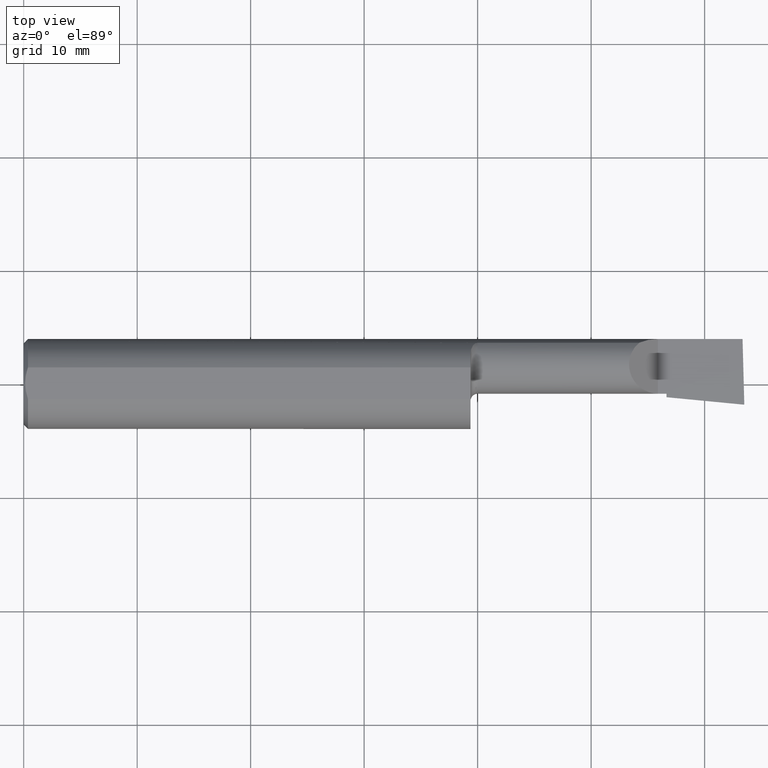
[diagram: clean part render]
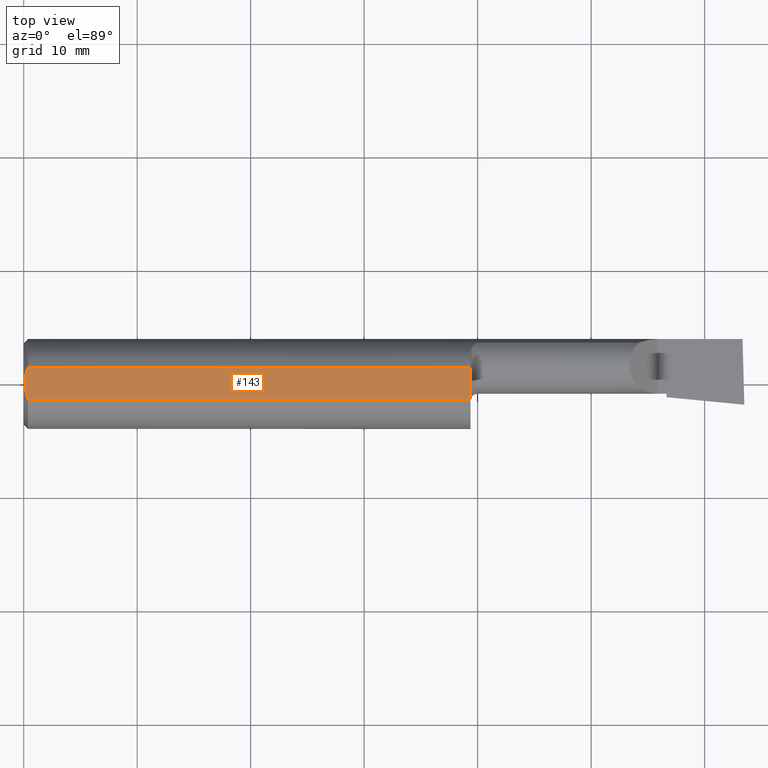
[diagram: same view with one face highlighted and labeled with its STEP entity id]
A machine part, top view. The second image highlights one B-rep face of the part: STEP entity #143.
In plain terms, the highlighted planar face has unit normal (0, -0, -1).
Its self-contained STEP definition (entity closure, byte-faithful):
#24 = CARTESIAN_POINT ( 'NONE',  ( 0.01187749995209277584, 0.04610609988228757394, 0.1460999999999999799 ) ) ;
#36 = ORIENTED_EDGE ( 'NONE', *, *, #657, .T. ) ;
#47 = CARTESIAN_POINT ( 'NONE',  ( 0.01190375560897322625, -0.04618065518901639382, 0.1461000000000000076 ) ) ;
#73 = LINE ( 'NONE', #413, #417 ) ;
#80 = DIRECTION ( 'NONE',  ( 3.414809992080329023E-18, 1.000000000000000000, -1.656870447394628111E-16 ) ) ;
#97 = ORIENTED_EDGE ( 'NONE', *, *, #557, .F. ) ;
#133 = CARTESIAN_POINT ( 'NONE',  ( 0.000000000000000000, -0.05497272050753897882, 0.1461000000000000076 ) ) ;
#143 = ADVANCED_FACE ( 'NONE', ( #406 ), #236, .F. ) ;
#155 = CARTESIAN_POINT ( 'NONE',  ( 0.01499999999999999944, -0.05497272050753897882, 0.1461000000000000076 ) ) ;
#164 = B_SPLINE_CURVE_WITH_KNOTS ( 'NONE', 3,
 ( #499, #350, #555, #447, #24, #454 ),
 .UNSPECIFIED., .F., .F.,
 ( 4, 2, 4 ),
 ( 0.002884734412378666280, 0.003593604306281239329, 0.004302474200183812811 ),
 .UNSPECIFIED. ) ;
#178 = VERTEX_POINT ( 'NONE', #288 ) ;
#195 = DIRECTION ( 'NONE',  ( -1.000000000000000000, -0.000000000000000000, -0.000000000000000000 ) ) ;
#197 = EDGE_CURVE ( 'NONE', #272, #674, #339, .T. ) ;
#235 = EDGE_CURVE ( 'NONE', #178, #272, #164, .T. ) ;
#236 = PLANE ( 'NONE',  #514 ) ;
#272 = VERTEX_POINT ( 'NONE', #307 ) ;
#282 = DIRECTION ( 'NONE',  ( 1.000000000000000000, 0.000000000000000000, 0.000000000000000000 ) ) ;
#288 = CARTESIAN_POINT ( 'NONE',  ( 0.005000000000000177913, 2.057148876208899831E-17, 0.1460999999999999799 ) ) ;
#307 = CARTESIAN_POINT ( 'NONE',  ( 0.01499999999999999424, 0.05497272050753903433, 0.1460999999999999521 ) ) ;
#339 = LINE ( 'NONE', #342, #579 ) ;
#342 = CARTESIAN_POINT ( 'NONE',  ( 0.000000000000000000, 0.05497272050753903433, 0.1460999999999999521 ) ) ;
#344 = CARTESIAN_POINT ( 'NONE',  ( 1.550000000000000044, 0.05497272050753902739, 0.1460999999999999521 ) ) ;
#350 = CARTESIAN_POINT ( 'NONE',  ( 0.005000000000000138882, 0.009391435229055633896, 0.1460999999999999521 ) ) ;
#360 = CARTESIAN_POINT ( 'NONE',  ( 0.009356849677356088302, -0.03706298561014170767, 0.1461000000000000354 ) ) ;
#368 = EDGE_CURVE ( 'NONE', #475, #178, #375, .T. ) ;
#375 = B_SPLINE_CURVE_WITH_KNOTS ( 'NONE', 3,
 ( #625, #47, #360, #632, #578, #572 ),
 .UNSPECIFIED., .F., .F.,
 ( 4, 2, 4 ),
 ( 0.001468071159906499112, 0.002176402786142582479, 0.002884734412378666280 ),
 .UNSPECIFIED. ) ;
#397 = DIRECTION ( 'NONE',  ( 0.000000000000000000, -1.656870447394628111E-16, -1.000000000000000000 ) ) ;
#406 = FACE_OUTER_BOUND ( 'NONE', #626, .T. ) ;
#413 = CARTESIAN_POINT ( 'NONE',  ( 1.550000000000000044, 0.2061000000000000332, 0.1460999999999999521 ) ) ;
#417 = VECTOR ( 'NONE', #80, 39.37007874015748143 ) ;
#420 = ORIENTED_EDGE ( 'NONE', *, *, #368, .F. ) ;
#447 = CARTESIAN_POINT ( 'NONE',  ( 0.009371209226504017067, 0.03711161584255317364, 0.1460999999999999799 ) ) ;
#454 = CARTESIAN_POINT ( 'NONE',  ( 0.01499999999999999424, 0.05497272050753903433, 0.1460999999999999521 ) ) ;
#473 = VECTOR ( 'NONE', #195, 39.37007874015748143 ) ;
#475 = VERTEX_POINT ( 'NONE', #155 ) ;
#499 = CARTESIAN_POINT ( 'NONE',  ( 0.005000000000000177913, 2.057148876208899831E-17, 0.1460999999999999799 ) ) ;
#514 = AXIS2_PLACEMENT_3D ( 'NONE', #622, #397, #613 ) ;
#522 = CARTESIAN_POINT ( 'NONE',  ( 1.550000000000000044, -0.05497272050753900657, 0.1461000000000000076 ) ) ;
#549 = ORIENTED_EDGE ( 'NONE', *, *, #235, .F. ) ;
#555 = CARTESIAN_POINT ( 'NONE',  ( 0.005929349363809115203, 0.01879672308419498561, 0.1461000000000000076 ) ) ;
#557 = EDGE_CURVE ( 'NONE', #614, #475, #627, .T. ) ;
#572 = CARTESIAN_POINT ( 'NONE',  ( 0.005000000000000177913, 2.057148876208899831E-17, 0.1460999999999999799 ) ) ;
#578 = CARTESIAN_POINT ( 'NONE',  ( 0.005000000000000139749, -0.009384304010803560733, 0.1460999999999999799 ) ) ;
#579 = VECTOR ( 'NONE', #282, 39.37007874015748143 ) ;
#613 = DIRECTION ( 'NONE',  ( 0.000000000000000000, 1.000000000000000000, -1.656870447394628111E-16 ) ) ;
#614 = VERTEX_POINT ( 'NONE', #522 ) ;
#622 = CARTESIAN_POINT ( 'NONE',  ( 2.500000000000000000, 0.2061000000000000332, 0.1460999999999999521 ) ) ;
#625 = CARTESIAN_POINT ( 'NONE',  ( 0.01499999999999999944, -0.05497272050753897882, 0.1461000000000000076 ) ) ;
#626 = EDGE_LOOP ( 'NONE', ( #97, #36, #670, #549, #420 ) ) ;
#627 = LINE ( 'NONE', #133, #473 ) ;
#632 = CARTESIAN_POINT ( 'NONE',  ( 0.005910707775482461519, -0.01866948012536269463, 0.1460999999999999799 ) ) ;
#657 = EDGE_CURVE ( 'NONE', #614, #674, #73, .T. ) ;
#670 = ORIENTED_EDGE ( 'NONE', *, *, #197, .F. ) ;
#674 = VERTEX_POINT ( 'NONE', #344 ) ;